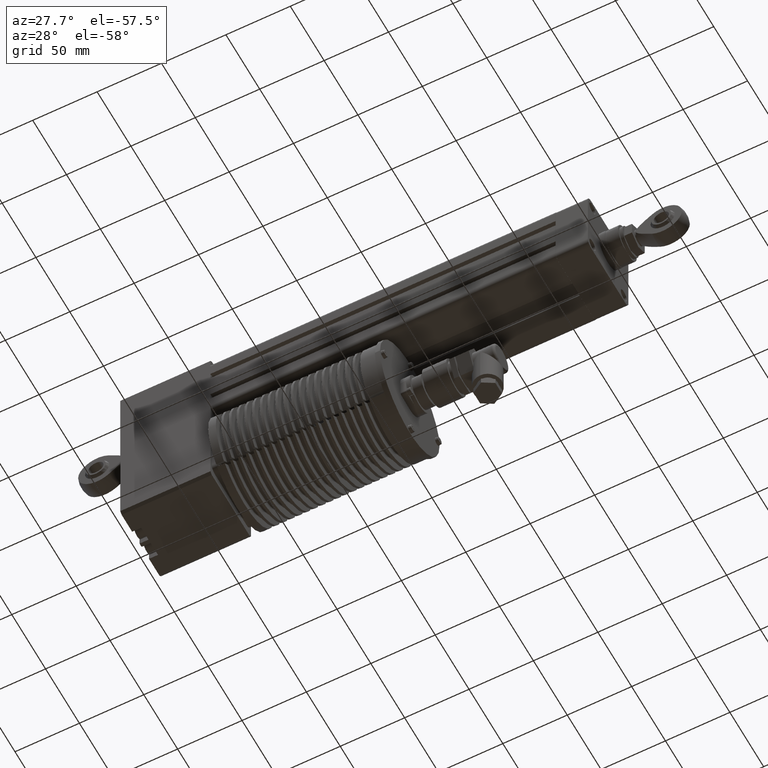
[diagram: clean part render]
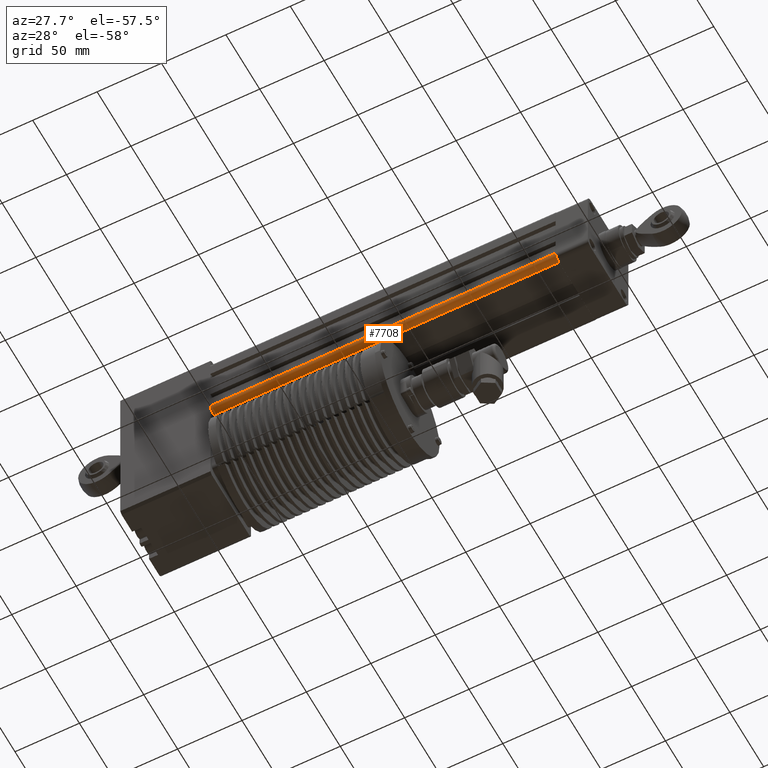
[diagram: same view with one face highlighted and labeled with its STEP entity id]
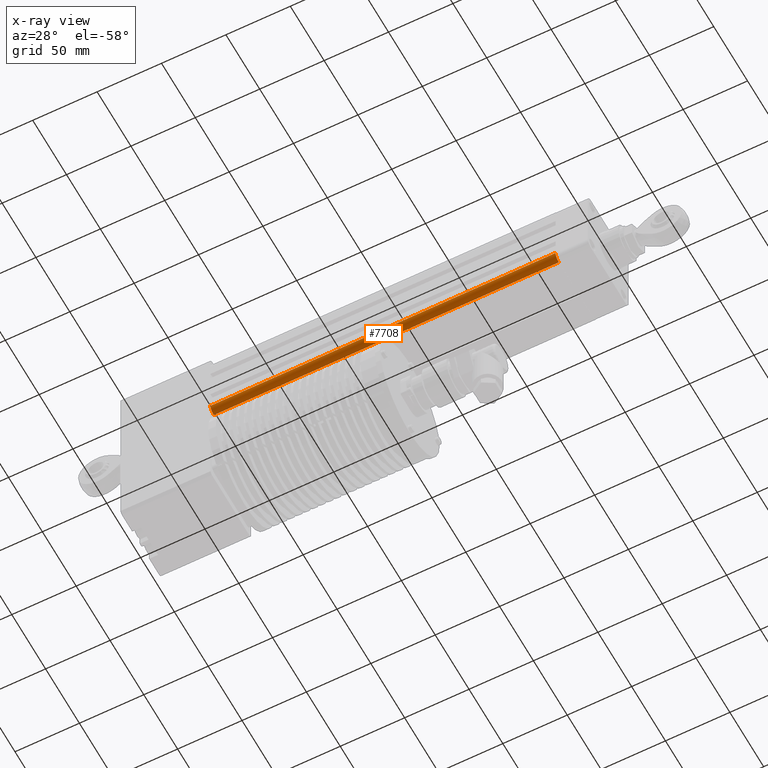
[diagram: x-ray of the same camera — body ghosted, the highlighted face saturated]
A machine part, auxiliary view. The second image highlights one B-rep face of the part: STEP entity #7708.
The next image is the same camera in x-ray: the body ghosted, the highlighted face saturated — about 0% of this face is hidden behind the body in this view.
In plain terms, the highlighted cylindrical surface (edge-blend (fillet) strip) has radius 5 mm, axis along (-1, -0, -0).
Its self-contained STEP definition (entity closure, byte-faithful):
#7650=CARTESIAN_POINT('',(232.0,30.149999999999977,25.150000000000034));
#7651=VERTEX_POINT('',#7650);
#7658=CARTESIAN_POINT('',(500.0,30.149999999999977,25.150000000000034));
#7659=VERTEX_POINT('',#7658);
#7660=CARTESIAN_POINT('',(500.0,30.149999999999977,25.150000000000034));
#7661=DIRECTION('',(-1.0,0.0,0.0));
#7662=VECTOR('',#7661,268.0);
#7663=LINE('',#7660,#7662);
#7664=EDGE_CURVE('',#7659,#7651,#7663,.T.);
#7676=CARTESIAN_POINT('',(500.0,25.149999999999977,25.150000000000034));
#7677=DIRECTION('',(-1.0,0.0,0.0));
#7678=DIRECTION('',(0.0,-1.0,0.0));
#7679=AXIS2_PLACEMENT_3D('',#7676,#7677,#7678);
#7680=CYLINDRICAL_SURFACE('',#7679,5.0);
#7681=CARTESIAN_POINT('',(232.0,25.149999999999977,30.150000000000034));
#7682=VERTEX_POINT('',#7681);
#7683=CARTESIAN_POINT('',(232.0,25.149999999999977,25.150000000000034));
#7684=DIRECTION('',(1.0,0.0,0.0));
#7685=DIRECTION('',(0.0,-1.0,0.0));
#7686=AXIS2_PLACEMENT_3D('',#7683,#7684,#7685);
#7687=CIRCLE('',#7686,5.0);
#7688=EDGE_CURVE('',#7651,#7682,#7687,.T.);
#7689=ORIENTED_EDGE('',*,*,#7688,.T.);
#7690=CARTESIAN_POINT('',(500.0,25.149999999999977,30.150000000000034));
#7691=VERTEX_POINT('',#7690);
#7692=CARTESIAN_POINT('',(500.0,25.149999999999977,30.150000000000034));
#7693=DIRECTION('',(-1.0,0.0,0.0));
#7694=VECTOR('',#7693,268.0);
#7695=LINE('',#7692,#7694);
#7696=EDGE_CURVE('',#7691,#7682,#7695,.T.);
#7697=ORIENTED_EDGE('',*,*,#7696,.F.);
#7698=CARTESIAN_POINT('',(500.0,25.149999999999977,25.150000000000034));
#7699=DIRECTION('',(1.0,0.0,0.0));
#7700=DIRECTION('',(0.0,-1.0,0.0));
#7701=AXIS2_PLACEMENT_3D('',#7698,#7699,#7700);
#7702=CIRCLE('',#7701,5.0);
#7703=EDGE_CURVE('',#7659,#7691,#7702,.T.);
#7704=ORIENTED_EDGE('',*,*,#7703,.F.);
#7705=ORIENTED_EDGE('',*,*,#7664,.T.);
#7706=EDGE_LOOP('',(#7689,#7697,#7704,#7705));
#7707=FACE_OUTER_BOUND('',#7706,.T.);
#7708=ADVANCED_FACE('',(#7707),#7680,.T.);